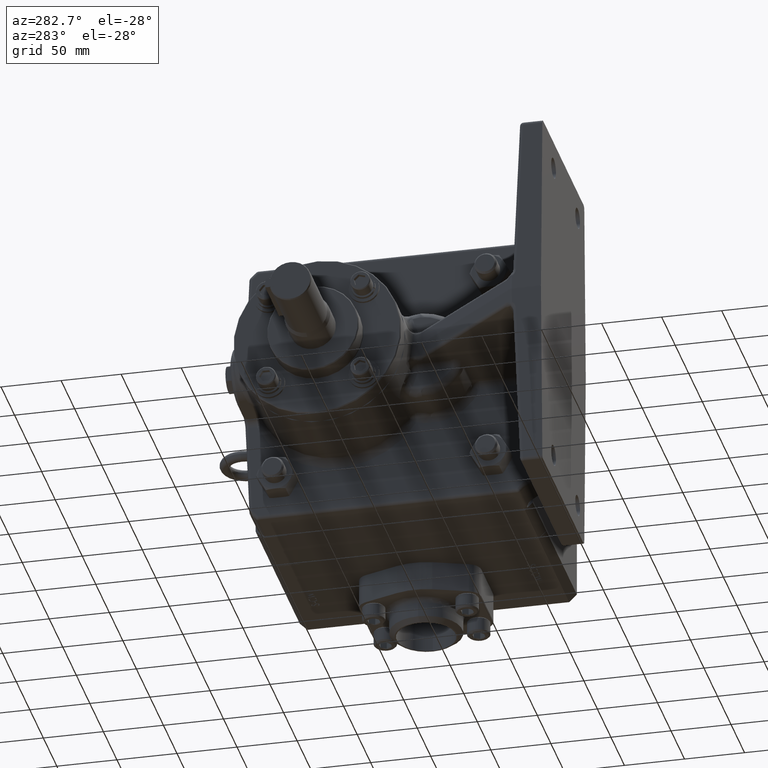
[diagram: clean part render]
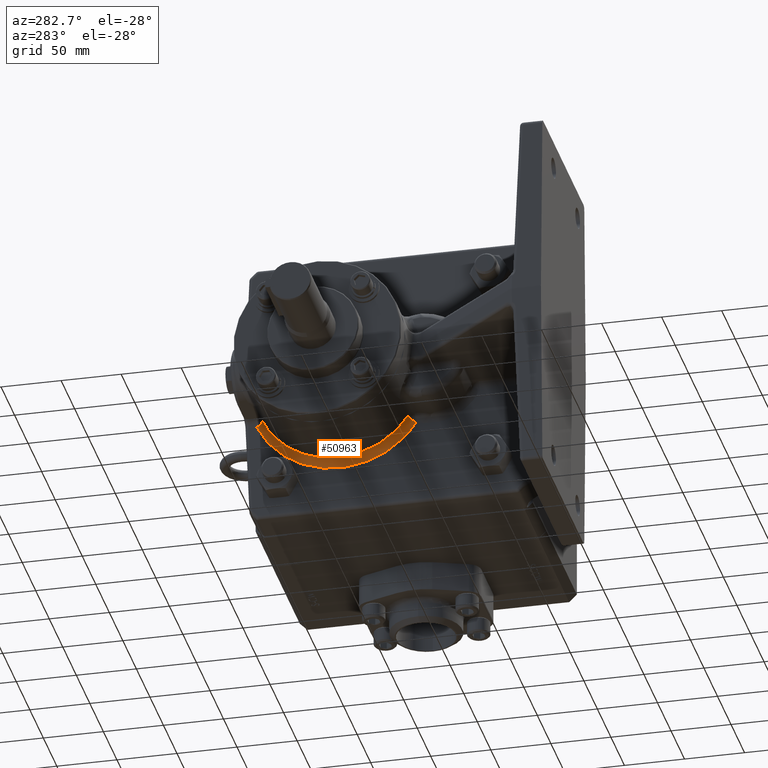
[diagram: same view with one face highlighted and labeled with its STEP entity id]
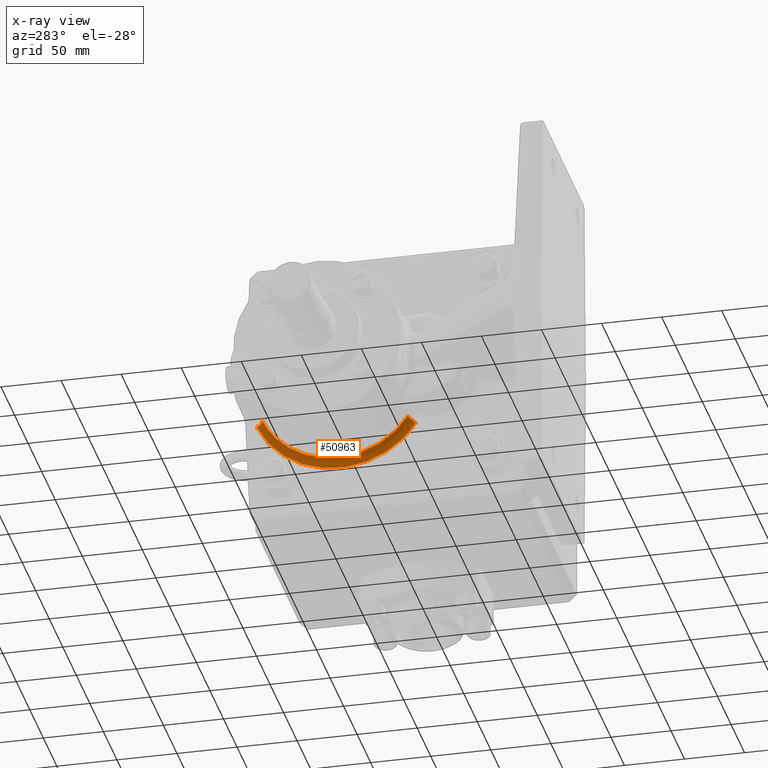
[diagram: x-ray of the same camera — body ghosted, the highlighted face saturated]
A machine part, auxiliary view. The second image highlights one B-rep face of the part: STEP entity #50963.
The next image is the same camera in x-ray: the body ghosted, the highlighted face saturated — about 0% of this face is hidden behind the body in this view.
In plain terms, the highlighted face is a freeform B-spline surface patch.
Its self-contained STEP definition (entity closure, byte-faithful):
#418 = CARTESIAN_POINT ( 'NONE',  ( -1.552153846446752800, -0.9286150581866817700, -3.547463890842673000 ) ) ;
#1246 = EDGE_CURVE ( 'Defeatured_0_821+Defeatured_0_865+Defeatured_0_766+Defeatured_0_825', #22075, #24975, #60086, .T. ) ;
#3342 = DIRECTION ( 'NONE',  ( 0.0000000000000000000, -0.9090593428863096300, 0.4166666666666665700 ) ) ;
#3953 =( BOUNDED_SURFACE ( )  B_SPLINE_SURFACE ( 3, 2, ( 
 ( #4074, #5076, #58086 ),
 ( #74218, #90083, #59140 ),
 ( #35918, #42645, #12882 ),
 ( #66813, #96874, #27403 ),
 ( #28075, #81273, #96555 ),
 ( #73220, #51337, #66177 ),
 ( #65824, #89718, #43651 ),
 ( #13232, #50676, #43335 ),
 ( #73550, #19947, #35217 ),
 ( #20625, #28411, #97206 ),
 ( #74559, #27063, #4404 ),
 ( #58425, #12202, #51684 ),
 ( #81962, #73874, #58790 ),
 ( #50987, #4753, #19283 ),
 ( #66500, #82266, #36247 ),
 ( #43962, #97861, #59439 ),
 ( #80941, #34892, #88722 ),
 ( #44641, #98530, #51993 ) ),
 .UNSPECIFIED., .F., .F., .F. ) 
 B_SPLINE_SURFACE_WITH_KNOTS ( ( 4, 2, 2, 2, 2, 2, 2, 2, 4 ),
 ( 3, 3 ),
 ( 2.162733933512759300, 2.427718885458684600, 2.692703837404610400, 2.957688789350535700, 3.222673741296461000, 3.487658693242386300, 3.752643645188311600, 4.017628597134237400, 4.282613549080162200 ),
 ( 0.0000000000000000000, 1.000000000000000000 ),
 .UNSPECIFIED. ) 
 GEOMETRIC_REPRESENTATION_ITEM ( )  RATIONAL_B_SPLINE_SURFACE ( (
 ( 1.000000000000000000, 0.7139582875265290100, 1.000000000000000000),
 ( 1.000000000000000000, 0.7148542589844942800, 1.000000000000000000),
 ( 1.000000000000000000, 0.7156677742211773300, 1.000000000000000000),
 ( 1.000000000000000000, 0.7170765339910706300, 1.000000000000000000),
 ( 1.000000000000000000, 0.7176714733403811700, 1.000000000000000000),
 ( 1.000000000000000000, 0.7186028731076187200, 1.000000000000000000),
 ( 1.000000000000000000, 0.7189392738447026900, 1.000000000000000000),
 ( 1.000000000000000000, 0.7193312129737095000, 1.000000000000000000),
 ( 1.000000000000000000, 0.7193867267924750600, 1.000000000000000000),
 ( 1.000000000000000000, 0.7192131775581173100, 1.000000000000000000),
 ( 1.000000000000000000, 0.7189841253441553400, 1.000000000000000000),
 ( 1.000000000000000000, 0.7182566051129999400, 1.000000000000000000),
 ( 1.000000000000000000, 0.7177581832217002600, 1.000000000000000000),
 ( 1.000000000000000000, 0.7165251048711754900, 1.000000000000000000),
 ( 1.000000000000000000, 0.7157905291580258800, 1.000000000000000000),
 ( 1.000000000000000000, 0.7141344381333248900, 1.000000000000000000),
 ( 1.000000000000000000, 0.7132132133751223300, 1.000000000000000000),
 ( 1.000000000000000000, 0.7122294071994554900, 1.000000000000000000) ) ) 
 REPRESENTATION_ITEM ( '' )  SURFACE ( )  );
#4074 = CARTESIAN_POINT ( 'NONE',  ( -1.378993915330387600, -2.489583333333333000, -1.665185167131519700 ) ) ;
#4404 = CARTESIAN_POINT ( 'NONE',  ( -1.585605660817593500, 0.7042969718733584900, -2.669357147504298800 ) ) ;
#4753 = CARTESIAN_POINT ( 'NONE',  ( -1.363481829523055300, 1.781122341946534300, -2.109393185220619100 ) ) ;
#5076 = CARTESIAN_POINT ( 'NONE',  ( -1.383766237093361900, -2.286080833813801200, -1.528523752379421500 ) ) ;
#11440 = CARTESIAN_POINT ( 'NONE',  ( -1.643644886922886100, 2.727178028658928400, -1.250000000000000700 ) ) ;
#12202 = CARTESIAN_POINT ( 'NONE',  ( -1.349733951550693900, 1.164690153170020200, -2.503080900981674800 ) ) ;
#12331 = CARTESIAN_POINT ( 'NONE',  ( -1.643644886922886100, 2.499913192937350800, -1.145833333333333900 ) ) ;
#12882 = CARTESIAN_POINT ( 'NONE',  ( -1.614172102329254600, -1.984201680254801300, -1.919490947516141900 ) ) ;
#13060 = ORIENTED_EDGE ( 'NONE', *, *, #82148, .T. ) ;
#13232 = CARTESIAN_POINT ( 'NONE',  ( -1.332760235667333400, -0.2880903873247520600, -2.989144528163927700 ) ) ;
#16399 = EDGE_CURVE ( 'Defeatured_0_823+Defeatured_0_821+Defeatured_0_767+Defeatured_0_824', #25965, #17794, #62859, .T. ) ;
#17794 = VERTEX_POINT ( 'NONE', #12331 ) ;
#18955 = DIRECTION ( 'NONE',  ( 0.0000000000000000000, -0.8298611111111107200, -0.5579700137690489800 ) ) ;
#19283 = CARTESIAN_POINT ( 'NONE',  ( -1.606799737987006900, 1.776702114955248200, -2.113014765740107500 ) ) ;
#19947 = CARTESIAN_POINT ( 'NONE',  ( -1.340737648296764100, -0.01940130807327165500, -2.760701319576525800 ) ) ;
#20625 = CARTESIAN_POINT ( 'NONE',  ( -1.333779466418488800, 0.5070912359549322200, -2.959957578220104400 ) ) ;
#20800 = ORIENTED_EDGE ( 'NONE', *, *, #16399, .F. ) ;
#20801 = CARTESIAN_POINT ( 'NONE',  ( -1.393797180168112400, 2.727178028658928400, -1.241275125824375300 ) ) ;
#22075 = VERTEX_POINT ( 'NONE', #53595 ) ;
#24975 = VERTEX_POINT ( 'NONE', #41383 ) ;
#25965 = VERTEX_POINT ( 'NONE', #70497 ) ;
#27063 = CARTESIAN_POINT ( 'NONE',  ( -1.343946199191912800, 0.7065312112176687100, -2.668820443454705100 ) ) ;
#27403 = CARTESIAN_POINT ( 'NONE',  ( -1.602054365282901300, -1.617014570315266500, -2.237580319208793500 ) ) ;
#28075 = CARTESIAN_POINT ( 'NONE',  ( -1.347080331783489600, -1.540626969714819800, -2.579070628745981700 ) ) ;
#28411 = CARTESIAN_POINT ( 'NONE',  ( -1.342120057613618700, 0.4662787227773451100, -2.721114296215780800 ) ) ;
#29239 = CARTESIAN_POINT ( 'NONE',  ( -1.302306139691979700, -1.013034608930926600, -3.861235734016379900 ) ) ;
#34892 = CARTESIAN_POINT ( 'NONE',  ( -1.389656918396394900, 2.402583491023103000, -1.359836710513533600 ) ) ;
#35116 = DIRECTION ( 'NONE',  ( 0.03172906833553441200, -0.4164568776493148800, -0.9086016372872891500 ) ) ;
#35217 = CARTESIAN_POINT ( 'NONE',  ( -1.582128252594766000, -0.01937610874515193600, -2.760638761578966700 ) ) ;
#35859 =( BOUNDED_CURVE ( )  B_SPLINE_CURVE ( 3, ( #55100, #418, #62184, #62845 ),
 .UNSPECIFIED., .F., .F. ) 
 B_SPLINE_CURVE_WITH_KNOTS ( ( 4, 4 ),
 ( 2.162733933512760200, 4.282613549080162200 ),
 .UNSPECIFIED. ) 
 CURVE ( )  GEOMETRIC_REPRESENTATION_ITEM ( )  RATIONAL_B_SPLINE_CURVE ( ( 1.000000000000000000, 0.6592830599898411600, 0.6592830599898411600, 1.000000000000000000 ) ) 
 REPRESENTATION_ITEM ( '' )  );
#35918 = CARTESIAN_POINT ( 'NONE',  ( -1.364324395574920000, -2.164583651186769800, -2.085265250387818200 ) ) ;
#36247 = CARTESIAN_POINT ( 'NONE',  ( -1.613118285982074300, 1.957062843865065000, -1.947153520060715300 ) ) ;
#38940 =( BOUNDED_CURVE ( )  B_SPLINE_CURVE ( 3, ( #20801, #43509, #29239, #82433 ),
 .UNSPECIFIED., .F., .F. ) 
 B_SPLINE_CURVE_WITH_KNOTS ( ( 4, 4 ),
 ( 2.000571758099424400, 4.120451373666826500 ),
 .UNSPECIFIED. ) 
 CURVE ( )  GEOMETRIC_REPRESENTATION_ITEM ( )  RATIONAL_B_SPLINE_CURVE ( ( 1.000000000000000000, 0.6592830599898411600, 0.6592830599898411600, 1.000000000000000000 ) ) 
 REPRESENTATION_ITEM ( '' )  );
#41383 = CARTESIAN_POINT ( 'NONE',  ( -1.628841622085162000, -2.282118055555555400, -1.534417537864883400 ) ) ;
#42632 = EDGE_LOOP ( 'NONE', ( #20800, #48798, #83580, #13060 ) ) ;
#42645 = CARTESIAN_POINT ( 'NONE',  ( -1.370272321463022800, -1.988704715028243500, -1.914938938099490800 ) ) ;
#43335 = CARTESIAN_POINT ( 'NONE',  ( -1.582607942422562500, -0.2640828550480222000, -2.748046952144701300 ) ) ;
#43509 = CARTESIAN_POINT ( 'NONE',  ( -1.309790666311927200, 1.624558497168621100, -3.646906934024827200 ) ) ;
#43651 = CARTESIAN_POINT ( 'NONE',  ( -1.585992290959681100, -0.7416965990920527700, -2.659208145372863100 ) ) ;
#43962 = CARTESIAN_POINT ( 'NONE',  ( -1.377487755375046900, 2.474265113059439500, -1.708315945097242100 ) ) ;
#44641 = CARTESIAN_POINT ( 'NONE',  ( -1.393797180168111700, 2.727178028658928400, -1.241275125824374600 ) ) ;
#48798 = ORIENTED_EDGE ( 'NONE', *, *, #59499, .T. ) ;
#50676 = CARTESIAN_POINT ( 'NONE',  ( -1.341180463429941800, -0.2649685907461406000, -2.748020753266559700 ) ) ;
#50963 = ADVANCED_FACE ( 'Defeatured_0_821', ( #59084 ), #3953, .F. ) ;
#50987 = CARTESIAN_POINT ( 'NONE',  ( -1.356952031232370400, 1.938220489041270900, -2.296382142995013500 ) ) ;
#51337 = CARTESIAN_POINT ( 'NONE',  ( -1.346981772141122100, -0.9775437691857795700, -2.581893007610788400 ) ) ;
#51684 = CARTESIAN_POINT ( 'NONE',  ( -1.591883215189137600, 1.161301425625446600, -2.504571980271793800 ) ) ;
#51993 = CARTESIAN_POINT ( 'NONE',  ( -1.643644886922885700, 2.499913192937350800, -1.145833333333333500 ) ) ;
#53595 = CARTESIAN_POINT ( 'NONE',  ( -1.378993915330388300, -2.489583333333333000, -1.665185167131520300 ) ) ;
#55100 = CARTESIAN_POINT ( 'NONE',  ( -1.628841622085162000, -2.282118055555555400, -1.534417537864883400 ) ) ;
#58074 = CARTESIAN_POINT ( 'NONE',  ( -1.628841622085162000, -2.489583333333333000, -1.673910041307145500 ) ) ;
#58086 = CARTESIAN_POINT ( 'NONE',  ( -1.628841622085161600, -2.282118055555554900, -1.534417537864883000 ) ) ;
#58425 = CARTESIAN_POINT ( 'NONE',  ( -1.342035508434430000, 1.266874282500118900, -2.723535467937217500 ) ) ;
#58777 = DIRECTION ( 'NONE',  ( -0.02896722771314461400, -0.5577358682430677600, 0.8295128696974907200 ) ) ;
#58790 = CARTESIAN_POINT ( 'NONE',  ( -1.596181767788509700, 1.378805112073457000, -2.391735409371671400 ) ) ;
#59084 = FACE_OUTER_BOUND ( 'NONE', #42632, .T. ) ;
#59140 = CARTESIAN_POINT ( 'NONE',  ( -1.621162230277309200, -2.146580419454919000, -1.736000795954453900 ) ) ;
#59439 = CARTESIAN_POINT ( 'NONE',  ( -1.627335462129033700, 2.268076353637902300, -1.573954084333671900 ) ) ;
#59499 = EDGE_CURVE ( 'Defeatured_0_821+Defeatured_0_766+Defeatured_0_823+Defeatured_0_865', #25965, #22075, #38940, .T. ) ;
#60086 = CIRCLE ( 'NONE', #70008, 0.2499999999999998600 ) ;
#62184 = CARTESIAN_POINT ( 'NONE',  ( -1.559638373066701400, 1.489178622404569600, -3.350995824183749000 ) ) ;
#62845 = CARTESIAN_POINT ( 'NONE',  ( -1.643644886922886100, 2.499913192937350800, -1.145833333333333900 ) ) ;
#62859 = CIRCLE ( 'NONE', #83942, 0.2500000000000000600 ) ;
#65824 = CARTESIAN_POINT ( 'NONE',  ( -1.336144584205362800, -0.8091235626462387500, -2.892229466231254900 ) ) ;
#66177 = CARTESIAN_POINT ( 'NONE',  ( -1.588896672495123000, -0.9745644805574554800, -2.582968423879297100 ) ) ;
#66500 = CARTESIAN_POINT ( 'NONE',  ( -1.363270579226513400, 2.134977647852888300, -2.115442602254474600 ) ) ;
#66813 = CARTESIAN_POINT ( 'NONE',  ( -1.352206658527687700, -1.764015894889668000, -2.432271837688133200 ) ) ;
#70008 = AXIS2_PLACEMENT_3D ( 'NONE', #58074, #58777, #18955 ) ;
#70497 = CARTESIAN_POINT ( 'NONE',  ( -1.393797180168112400, 2.727178028658928400, -1.241275125824375300 ) ) ;
#73220 = CARTESIAN_POINT ( 'NONE',  ( -1.339048965740329500, -1.063161251516468800, -2.809058860965715000 ) ) ;
#73550 = CARTESIAN_POINT ( 'NONE',  ( -1.332280545840288400, -0.02113757317637348900, -3.002881047548415300 ) ) ;
#73874 = CARTESIAN_POINT ( 'NONE',  ( -1.353699168889504100, 1.382699352184232100, -2.389531932975726300 ) ) ;
#74218 = CARTESIAN_POINT ( 'NONE',  ( -1.371314523761304200, -2.341724098517097700, -1.885094169162483800 ) ) ;
#74559 = CARTESIAN_POINT ( 'NONE',  ( -1.335757954062753500, 0.7683239693167592800, -2.903301104921814300 ) ) ;
#80941 = CARTESIAN_POINT ( 'NONE',  ( -1.385384902073271600, 2.616763470239488000, -1.482171252034541600 ) ) ;
#81273 = CARTESIAN_POINT ( 'NONE',  ( -1.354384809167227700, -1.416160925421712000, -2.369897764303438200 ) ) ;
#81962 = CARTESIAN_POINT ( 'NONE',  ( -1.346334061033598500, 1.504151031353680300, -2.600441026957494000 ) ) ;
#82148 = EDGE_CURVE ( 'Defeatured_0_821+Defeatured_0_825+Defeatured_0_865+Defeatured_0_823', #24975, #17794, #35859, .T. ) ;
#82266 = CARTESIAN_POINT ( 'NONE',  ( -1.369304506897015800, 1.961565950719655200, -1.942653521209529900 ) ) ;
#82433 = CARTESIAN_POINT ( 'NONE',  ( -1.378993915330388300, -2.489583333333333000, -1.665185167131520300 ) ) ;
#83580 = ORIENTED_EDGE ( 'NONE', *, *, #1246, .T. ) ;
#83942 = AXIS2_PLACEMENT_3D ( 'NONE', #11440, #35116, #3342 ) ;
#88722 = CARTESIAN_POINT ( 'NONE',  ( -1.635232608615162100, 2.398699845163815500, -1.366654787937334300 ) ) ;
#89718 = CARTESIAN_POINT ( 'NONE',  ( -1.344301505280328900, -0.7439745346518155100, -2.658645808307249500 ) ) ;
#90083 = CARTESIAN_POINT ( 'NONE',  ( -1.376710710212891700, -2.150988520051272200, -1.730567607080427500 ) ) ;
#96555 = CARTESIAN_POINT ( 'NONE',  ( -1.596928038538243800, -1.412241388904558900, -2.372145877678404300 ) ) ;
#96874 = CARTESIAN_POINT ( 'NONE',  ( -1.359111979794930700, -1.621286620158379800, -2.234529308927986500 ) ) ;
#97206 = CARTESIAN_POINT ( 'NONE',  ( -1.583627173173558900, 0.4648336329588307900, -2.721292248030822600 ) ) ;
#97861 = CARTESIAN_POINT ( 'NONE',  ( -1.382389535372872100, 2.272327520668764300, -1.567947331524002700 ) ) ;
#98530 = CARTESIAN_POINT ( 'NONE',  ( -1.397378255785329100, 2.503170587501521100, -1.138726537424470800 ) ) ;